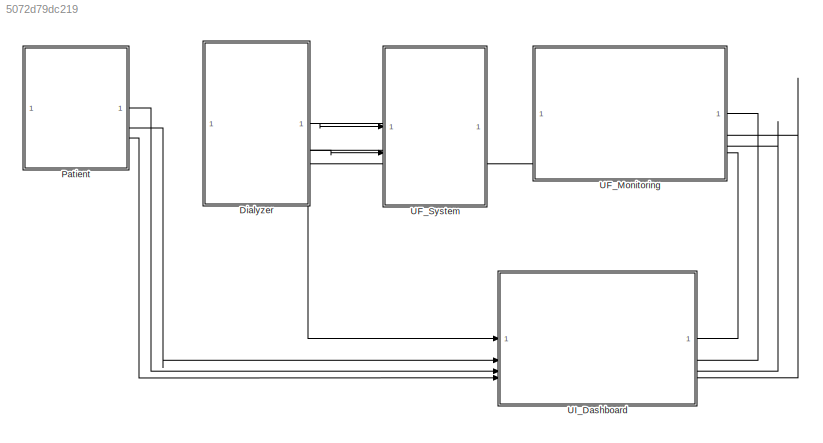
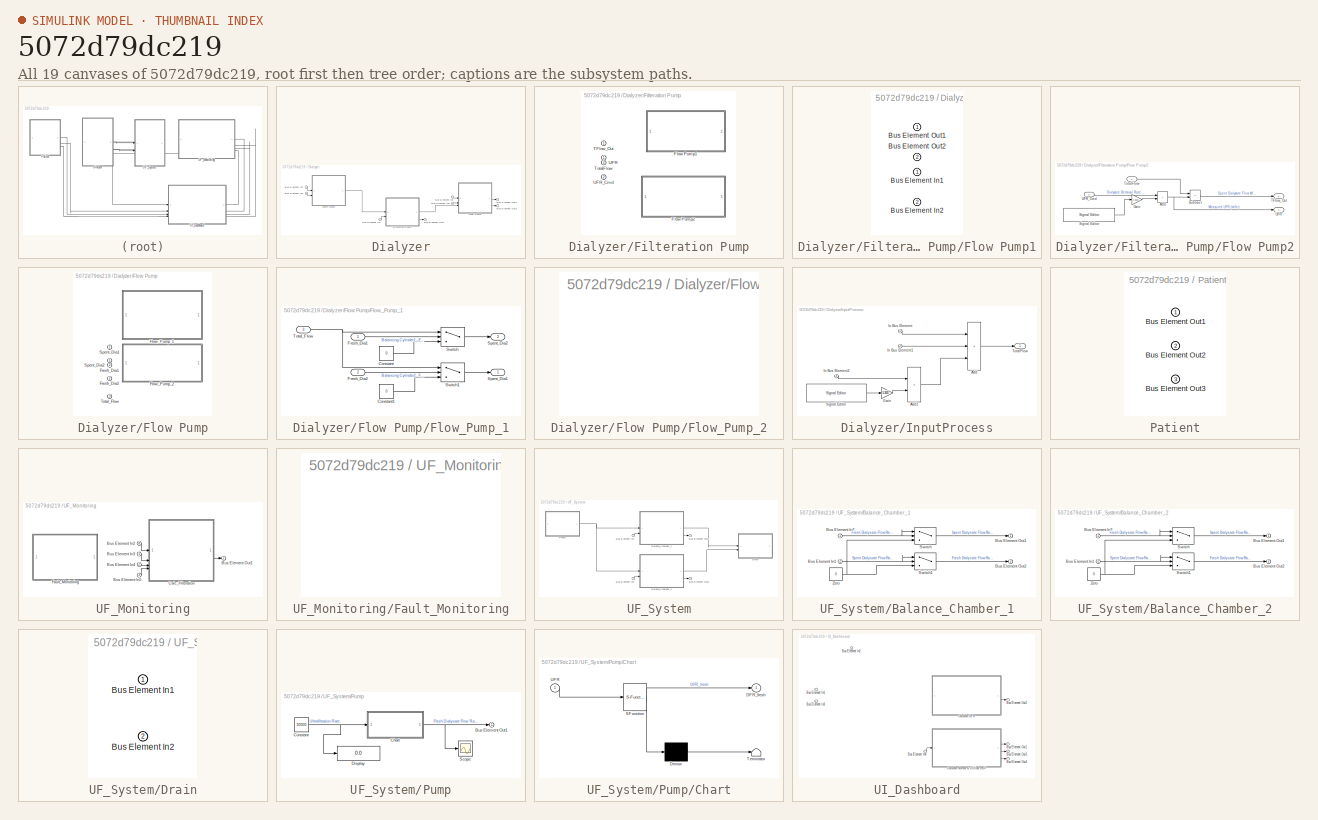
[diagram: thumbnail index - all 19 canvases of the model, root first then tree order]
MODEL slx_5072d79dc219
KIND model
CONFIG AbsTol = auto
CONFIG EnableMultiTasking = off
CONFIG FixedStep = auto
CONFIG MaxStep = auto
CONFIG MinStep = auto
CONFIG RelTol = 1e-3
CONFIG SampleTimeConstraint = Unconstrained
CONFIG SolverName = VariableStepAuto
CONFIG StartTime = 0.0
CONFIG StopTime = 3600*4
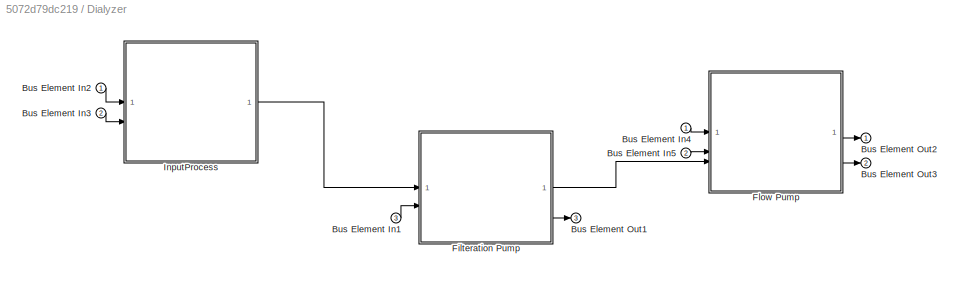
BLOCK [SubSystem] Dialyzer
  PortSchema = {"entries":[{"content":{"headerSize":26,"margin":15,"minimumSpacing":25,"sides":[{"content":{},"type":"ConnectorPlacement.EquallySpacedRectSide","uuid":"646d2c69-fb26-4ce3-9a1c-87f27dc8a7c9"},{"content":{"connectorIds":["In1","In2","Out1","Out2"],"side":"RIGHT"},"type":"ConnectorPlacement.EquallySpacedRectSide","uuid":"7346902f-f0ff-4e8d-8c8a-3cdeffc7661f"},{"content":{"side":"TOP"},"type":"Connec...<+423ch>
BLOCK [Inport] Dialyzer/Bus Element In1
  Port = 3
BLOCK [Inport] Dialyzer/Bus Element In2
BLOCK [Inport] Dialyzer/Bus Element In3
  Port = 2
BLOCK [Inport] Dialyzer/Bus Element In4
BLOCK [Inport] Dialyzer/Bus Element In5
  Port = 2
BLOCK [Outport] Dialyzer/Bus Element Out1
  Port = 3
BLOCK [Outport] Dialyzer/Bus Element Out2
BLOCK [Outport] Dialyzer/Bus Element Out3
  Port = 2
BLOCK [SubSystem] Dialyzer/Filteration Pump
  LabelModeActiveChoice = false
  PortSchema = {"entries":[{"content":{"headerSize":38,"margin":15,"minimumSpacing":25,"sides":[{"content":{"connectorIds":["In1","In2"]},"type":"ConnectorPlacement.EquallySpacedRectSide","uuid":"9dabf490-3af2-45d6-8c60-cb1a1321c83a"},{"content":{"connectorIds":["Out1","Out2"],"side":"RIGHT"},"type":"ConnectorPlacement.EquallySpacedRectSide","uuid":"a9747e4f-9c1f-4b08-97d0-3540262e7855"},{"content":{"side":"TOP"...<+283ch>
  Variant = on
  VariantControlMode = label
BLOCK [SubSystem] Dialyzer/Filteration Pump/Flow Pump1
  PortSchema = {"entries":[{"content":{"headerSize":26,"margin":15,"minimumSpacing":25,"sides":[{"content":{"connectorIds":["In1","In2"]},"type":"ConnectorPlacement.EquallySpacedRectSide","uuid":"d349afe6-09cd-4458-bff5-c9b0512ae125"},{"content":{"connectorIds":["Out1","Out2"],"side":"RIGHT"},"type":"ConnectorPlacement.EquallySpacedRectSide","uuid":"419f3d35-5a25-43f9-91a3-664932055dc6"},{"content":{"side":"TOP"...<+283ch>
  VariantControl = true
BLOCK [Inport] Dialyzer/Filteration Pump/Flow Pump1/Bus Element In1
BLOCK [Inport] Dialyzer/Filteration Pump/Flow Pump1/Bus Element In2
  Port = 2
BLOCK [Outport] Dialyzer/Filteration Pump/Flow Pump1/Bus Element Out1
BLOCK [Outport] Dialyzer/Filteration Pump/Flow Pump1/Bus Element Out2
  Port = 2
BLOCK [SubSystem] Dialyzer/Filteration Pump/Flow Pump2
  PortSchema = {"entries":[{"content":{"headerSize":26,"margin":15,"minimumSpacing":25,"sides":[{"content":{"connectorIds":["In1","In2"]},"type":"ConnectorPlacement.EquallySpacedRectSide","uuid":"d349afe6-09cd-4458-bff5-c9b0512ae125"},{"content":{"connectorIds":["Out1","Out2"],"side":"RIGHT"},"type":"ConnectorPlacement.EquallySpacedRectSide","uuid":"419f3d35-5a25-43f9-91a3-664932055dc6"},{"content":{"side":"TOP"...<+283ch>
  VariantControl = false
BLOCK [Sum] Dialyzer/Filteration Pump/Flow Pump2/Add
  IconShape = rectangular
BLOCK [Gain] Dialyzer/Filteration Pump/Flow Pump2/Gain
  Gain = 1/3600
BLOCK [Reference] Dialyzer/Filteration Pump/Flow Pump2/Signal Editor  REF=SignalEditorBlockLib/Signal Editor
  SourceBlock = SignalEditorBlockLib/Signal Editor
  SourceType = SignalEditor
  UserDataPersistent = on
BLOCK [Sum] Dialyzer/Filteration Pump/Flow Pump2/Subtract
  IconShape = rectangular
  Inputs = +-
BLOCK [Outport] Dialyzer/Filteration Pump/Flow Pump2/TFlow_Out
BLOCK [Inport] Dialyzer/Filteration Pump/Flow Pump2/TotalFlow
BLOCK [Outport] Dialyzer/Filteration Pump/Flow Pump2/UFR
  Port = 2
BLOCK [Inport] Dialyzer/Filteration Pump/Flow Pump2/UFR_Cmd
  Port = 2
BLOCK [Outport] Dialyzer/Filteration Pump/TFlow_Out
BLOCK [Inport] Dialyzer/Filteration Pump/TotalFlow
BLOCK [Outport] Dialyzer/Filteration Pump/UFR
  Port = 2
BLOCK [Inport] Dialyzer/Filteration Pump/UFR_Cmd
  Port = 2
BLOCK [SubSystem] Dialyzer/Flow Pump
  LabelModeActiveChoice = true
  PortSchema = {"entries":[{"content":{"headerSize":38,"margin":15,"minimumSpacing":25,"sides":[{"content":{"connectorIds":["In1","In2","In3"]},"type":"ConnectorPlacement.EquallySpacedRectSide","uuid":"9dabf490-3af2-45d6-8c60-cb1a1321c83a"},{"content":{"connectorIds":["Out1","Out2"],"side":"RIGHT"},"type":"ConnectorPlacement.EquallySpacedRectSide","uuid":"a9747e4f-9c1f-4b08-97d0-3540262e7855"},{"content":{"side"...<+289ch>
  Variant = on
  VariantControlMode = label
BLOCK [SubSystem] Dialyzer/Flow Pump/Flow_Pump_1
  PortSchema = {"entries":[{"content":{"headerSize":26,"margin":15,"minimumSpacing":25,"sides":[{"content":{"connectorIds":["In1","In2","In3"]},"type":"ConnectorPlacement.EquallySpacedRectSide","uuid":"d349afe6-09cd-4458-bff5-c9b0512ae125"},{"content":{"connectorIds":["Out1","Out2"],"side":"RIGHT"},"type":"ConnectorPlacement.EquallySpacedRectSide","uuid":"419f3d35-5a25-43f9-91a3-664932055dc6"},{"content":{"side"...<+289ch>
  VariantControl = true
BLOCK [Constant] Dialyzer/Flow Pump/Flow_Pump_1/Constant
  SampleTime = -1
  Value = 0
BLOCK [Constant] Dialyzer/Flow Pump/Flow_Pump_1/Constant1
  SampleTime = -1
  Value = 0
BLOCK [Inport] Dialyzer/Flow Pump/Flow_Pump_1/Fresh_Dia1
BLOCK [Inport] Dialyzer/Flow Pump/Flow_Pump_1/Fresh_Dia2
  Port = 2
BLOCK [Outport] Dialyzer/Flow Pump/Flow_Pump_1/Spent_Dia1
BLOCK [Outport] Dialyzer/Flow Pump/Flow_Pump_1/Spent_Dia2
  Port = 2
BLOCK [Switch] Dialyzer/Flow Pump/Flow_Pump_1/Switch
  Criteria = u2 > Threshold
  InputSameDT = off
  SaturateOnIntegerOverflow = off
BLOCK [Switch] Dialyzer/Flow Pump/Flow_Pump_1/Switch1
  Criteria = u2 > Threshold
  InputSameDT = off
  SaturateOnIntegerOverflow = off
BLOCK [Inport] Dialyzer/Flow Pump/Flow_Pump_1/Total_Flow
  Port = 3
BLOCK [SubSystem] Dialyzer/Flow Pump/Flow_Pump_2
  PortSchema = {"entries":[{"content":{"headerSize":26,"margin":15,"minimumSpacing":25,"sides":[{"content":{},"type":"ConnectorPlacement.EquallySpacedRectSide","uuid":"d349afe6-09cd-4458-bff5-c9b0512ae125"},{"content":{"side":"RIGHT"},"type":"ConnectorPlacement.EquallySpacedRectSide","uuid":"419f3d35-5a25-43f9-91a3-664932055dc6"},{"content":{"side":"TOP"},"type":"ConnectorPlacement.EquallySpacedRectSide","uuid":...<+224ch>
  VariantControl = false
BLOCK [Inport] Dialyzer/Flow Pump/Fresh_Dia1
BLOCK [Inport] Dialyzer/Flow Pump/Fresh_Dia2
  Port = 2
BLOCK [Outport] Dialyzer/Flow Pump/Spent_Dia1
BLOCK [Outport] Dialyzer/Flow Pump/Spent_Dia2
  Port = 2
BLOCK [Inport] Dialyzer/Flow Pump/Total_Flow
  Port = 3
BLOCK [SubSystem] Dialyzer/InputProcess
  PortSchema = {"entries":[{"content":{"headerSize":26,"margin":15,"minimumSpacing":25,"sides":[{"content":{"connectorIds":["In1","In2","In3"]},"type":"ConnectorPlacement.EquallySpacedRectSide","uuid":"646d2c69-fb26-4ce3-9a1c-87f27dc8a7c9"},{"content":{"connectorIds":["Out1"],"side":"RIGHT"},"type":"ConnectorPlacement.EquallySpacedRectSide","uuid":"7346902f-f0ff-4e8d-8c8a-3cdeffc7661f"},{"content":{"side":"TOP"}...<+282ch>
BLOCK [Sum] Dialyzer/InputProcess/Add
  IconShape = rectangular
  Inputs = +++
BLOCK [Sum] Dialyzer/InputProcess/Add1
  IconShape = rectangular
BLOCK [Gain] Dialyzer/InputProcess/Gain
  Gain = 1/3600
BLOCK [Inport] Dialyzer/InputProcess/In Bus Element
BLOCK [Inport] Dialyzer/InputProcess/In Bus Element1
  Port = 2
BLOCK [Inport] Dialyzer/InputProcess/In Bus Element2
  Port = 3
BLOCK [Reference] Dialyzer/InputProcess/Signal Editor  REF=SignalEditorBlockLib/Signal Editor
  SourceBlock = SignalEditorBlockLib/Signal Editor
  SourceType = SignalEditor
  UserDataPersistent = on
BLOCK [Outport] Dialyzer/InputProcess/TotalFlow
BLOCK [SubSystem] Patient
  PortSchema = {"entries":[{"content":{"headerSize":26,"margin":15,"minimumSpacing":25,"sides":[{"content":{},"type":"ConnectorPlacement.EquallySpacedRectSide","uuid":"c448f8e9-f718-4d55-8ae9-400f94c3ed78"},{"content":{"connectorIds":["Out2","Out1","Out3"],"side":"RIGHT"},"type":"ConnectorPlacement.EquallySpacedRectSide","uuid":"ddea2424-6372-4e6c-88b3-edcc675d5c44"},{"content":{"side":"TOP"},"type":"ConnectorPl...<+388ch>
BLOCK [Outport] Patient/Bus Element Out1
BLOCK [Outport] Patient/Bus Element Out2
  Port = 2
BLOCK [Outport] Patient/Bus Element Out3
  Port = 3
BLOCK [SubSystem] UF_Monitoring
  PortSchema = {"entries":[{"content":{"headerSize":26,"margin":15,"minimumSpacing":25,"sides":[{"content":{},"type":"ConnectorPlacement.EquallySpacedRectSide","uuid":"c448f8e9-f718-4d55-8ae9-400f94c3ed78"},{"content":{"connectorIds":["In2","In3","In1","In4"],"side":"RIGHT"},"type":"ConnectorPlacement.EquallySpacedRectSide","uuid":"ddea2424-6372-4e6c-88b3-edcc675d5c44"},{"content":{"side":"TOP"},"type":"Connecto...<+415ch>
BLOCK [Inport] UF_Monitoring/Bus Element In2
  Port = 4
BLOCK [Inport] UF_Monitoring/Bus Element In3
BLOCK [Inport] UF_Monitoring/Bus Element In4
  Port = 2
BLOCK [Inport] UF_Monitoring/Bus Element In5
  Port = 3
BLOCK [Outport] UF_Monitoring/Bus Element Out1
BLOCK [ModelReference] UF_Monitoring/Calc_Filteration
  ModelNameDialog = UFR_Monitoring_System
  ModelReferenceVersion = 3.74
  PortSchema = {"entries":[{"content":{"headerSize":38,"margin":15,"minimumSpacing":25,"sides":[{"content":{"connectorIds":["In1","In2","In3","In4"]},"type":"ConnectorPlacement.EquallySpacedRectSide","uuid":"c448f8e9-f718-4d55-8ae9-400f94c3ed78"},{"content":{"connectorIds":["Out1"],"side":"RIGHT"},"type":"ConnectorPlacement.EquallySpacedRectSide","uuid":"ddea2424-6372-4e6c-88b3-edcc675d5c44"},{"content":{"side":...<+288ch>
BLOCK [SubSystem] UF_Monitoring/Fault_Monitoring
  PortSchema = {"entries":[{"content":{"headerSize":26,"margin":15,"minimumSpacing":25,"sides":[{"content":{},"type":"ConnectorPlacement.EquallySpacedRectSide","uuid":"a687e012-4840-413d-ae7b-c05f2b55ca05"},{"content":{"side":"RIGHT"},"type":"ConnectorPlacement.EquallySpacedRectSide","uuid":"6a695777-1bf4-4cf6-ae1b-4fd6cbf201ea"},{"content":{"side":"TOP"},"type":"ConnectorPlacement.EquallySpacedRectSide","uuid":...<+224ch>
BLOCK [SubSystem] UF_System
  PortSchema = {"entries":[{"content":{"headerSize":26,"margin":15,"minimumSpacing":25,"sides":[{"content":{"connectorIds":["Out1","Out2","In1","In2"]},"type":"ConnectorPlacement.EquallySpacedRectSide","uuid":"c448f8e9-f718-4d55-8ae9-400f94c3ed78"},{"content":{"side":"RIGHT"},"type":"ConnectorPlacement.EquallySpacedRectSide","uuid":"ddea2424-6372-4e6c-88b3-edcc675d5c44"},{"content":{"side":"TOP"},"type":"Connect...<+392ch>
BLOCK [SubSystem] UF_System/Balance_Chamber_1
  PortSchema = {"entries":[{"content":{"headerSize":26,"margin":15,"minimumSpacing":25,"sides":[{"content":{"connectorIds":["In1","In2"]},"type":"ConnectorPlacement.EquallySpacedRectSide","uuid":"c448f8e9-f718-4d55-8ae9-400f94c3ed78"},{"content":{"connectorIds":["Out1","Out2"],"side":"RIGHT"},"type":"ConnectorPlacement.EquallySpacedRectSide","uuid":"ddea2424-6372-4e6c-88b3-edcc675d5c44"},{"content":{"side":"TOP"...<+283ch>
BLOCK [Inport] UF_System/Balance_Chamber_1/Bus Element In1
  Port = 2
BLOCK [Inport] UF_System/Balance_Chamber_1/Bus Element In2
BLOCK [Outport] UF_System/Balance_Chamber_1/Bus Element Out1
BLOCK [Outport] UF_System/Balance_Chamber_1/Bus Element Out2
  Port = 2
BLOCK [Switch] UF_System/Balance_Chamber_1/Switch
  Criteria = u2 > Threshold
  InputSameDT = off
  SaturateOnIntegerOverflow = off
BLOCK [Switch] UF_System/Balance_Chamber_1/Switch1
  Criteria = u2 > Threshold
  InputSameDT = off
  SaturateOnIntegerOverflow = off
BLOCK [Constant] UF_System/Balance_Chamber_1/Zero
  OutDataTypeStr = Inherit: Inherit via back propagation
  Value = 0
BLOCK [SubSystem] UF_System/Balance_Chamber_2
  PortSchema = {"entries":[{"content":{"headerSize":26,"margin":15,"minimumSpacing":25,"sides":[{"content":{"connectorIds":["In1","In2"]},"type":"ConnectorPlacement.EquallySpacedRectSide","uuid":"c448f8e9-f718-4d55-8ae9-400f94c3ed78"},{"content":{"connectorIds":["Out1","Out2"],"side":"RIGHT"},"type":"ConnectorPlacement.EquallySpacedRectSide","uuid":"ddea2424-6372-4e6c-88b3-edcc675d5c44"},{"content":{"side":"TOP"...<+283ch>
BLOCK [Inport] UF_System/Balance_Chamber_2/Bus Element In1
  Port = 2
BLOCK [Inport] UF_System/Balance_Chamber_2/Bus Element In2
BLOCK [Outport] UF_System/Balance_Chamber_2/Bus Element Out1
BLOCK [Outport] UF_System/Balance_Chamber_2/Bus Element Out2
  Port = 2
BLOCK [Switch] UF_System/Balance_Chamber_2/Switch
  Criteria = u2 > Threshold
  InputSameDT = off
  SaturateOnIntegerOverflow = off
BLOCK [Switch] UF_System/Balance_Chamber_2/Switch1
  Criteria = u2 > Threshold
  InputSameDT = off
  SaturateOnIntegerOverflow = off
BLOCK [Constant] UF_System/Balance_Chamber_2/Zero
  OutDataTypeStr = Inherit: Inherit via back propagation
  Value = 0
BLOCK [Inport] UF_System/Bus Element In3
  Port = 2
BLOCK [Inport] UF_System/Bus Element In4
BLOCK [Outport] UF_System/Bus Element Out1
BLOCK [Outport] UF_System/Bus Element Out2
  Port = 2
BLOCK [SubSystem] UF_System/Drain
  PortSchema = {"entries":[{"content":{"headerSize":26,"margin":15,"minimumSpacing":25,"sides":[{"content":{"connectorIds":["In1","In2"]},"type":"ConnectorPlacement.EquallySpacedRectSide","uuid":"c448f8e9-f718-4d55-8ae9-400f94c3ed78"},{"content":{"side":"RIGHT"},"type":"ConnectorPlacement.EquallySpacedRectSide","uuid":"ddea2424-6372-4e6c-88b3-edcc675d5c44"},{"content":{"side":"TOP"},"type":"ConnectorPlacement.Eq...<+252ch>
BLOCK [Inport] UF_System/Drain/Bus Element In1
BLOCK [Inport] UF_System/Drain/Bus Element In2
  Port = 2
BLOCK [SubSystem] UF_System/Pump
  PortSchema = {"entries":[{"content":{"headerSize":26,"margin":15,"minimumSpacing":25,"sides":[{"content":{},"type":"ConnectorPlacement.EquallySpacedRectSide","uuid":"c448f8e9-f718-4d55-8ae9-400f94c3ed78"},{"content":{"connectorIds":["Out1"],"side":"RIGHT"},"type":"ConnectorPlacement.EquallySpacedRectSide","uuid":"ddea2424-6372-4e6c-88b3-edcc675d5c44"},{"content":{"side":"TOP"},"type":"ConnectorPlacement.Equall...<+248ch>
BLOCK [Outport] UF_System/Pump/Bus Element Out1
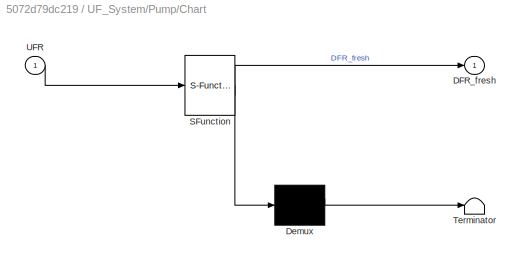
BLOCK [SubSystem] UF_System/Pump/Chart
  ErrorFcn = Stateflow.Translate.translate
  PermitHierarchicalResolution = ExplicitOnly
  SFBlockType = Chart
  TreatAsAtomicUnit = on
BLOCK [Demux] UF_System/Pump/Chart/ Demux 
  Outputs = 1
BLOCK [S-Function] UF_System/Pump/Chart/ SFunction 
  EnableBusSupport = on
  FunctionName = sf_sfun
  PortCounts = [1 2]
  SFcnIsStateOwnerBlock = off
  SFunctionDeploymentMode = off
  Tag = Stateflow S-Function 5
BLOCK [Terminator] UF_System/Pump/Chart/ Terminator 
BLOCK [Outport] UF_System/Pump/Chart/DFR_fresh
BLOCK [Inport] UF_System/Pump/Chart/UFR
BLOCK [Constant] UF_System/Pump/Constant
  Value = 30000
BLOCK [Display] UF_System/Pump/Display
  Decimation = 1
BLOCK [Scope] UF_System/Pump/Scope
  Floating = off
  NumInputPorts = 1
  ScopeSpecificationString = Simulink.scopes.TimeScopeBlockCfg('CurrentConfiguration', extmgr.ConfigurationSet(extmgr.Configuration('Core','General UI',true),extmgr.Configuration('Core','Source UI',true),extmgr.Configuration('Sources','WiredSimulink',true),extmgr.Configuration('Visuals','Time Domain',true,'SerializedDisplays',{struct('MinYLimReal','-3750.00000','MaxYLimReal','33750.00000','YLabelReal','','MinYLimMag','  0.000...<+1462ch>
BLOCK [SubSystem] UI_Dashboard
  PortSchema = {"entries":[{"content":{"headerSize":26,"margin":15,"minimumSpacing":25,"sides":[{"content":{"connectorIds":["In1","In2","In3","In4"]},"type":"ConnectorPlacement.EquallySpacedRectSide","uuid":"c448f8e9-f718-4d55-8ae9-400f94c3ed78"},{"content":{"connectorIds":["Out1","Out2","Out3","Out4"],"side":"RIGHT"},"type":"ConnectorPlacement.EquallySpacedRectSide","uuid":"ddea2424-6372-4e6c-88b3-edcc675d5c44"...<+309ch>
BLOCK [Inport] UI_Dashboard/Bus Element In1
  Port = 3
BLOCK [Inport] UI_Dashboard/Bus Element In2
  Port = 2
BLOCK [Inport] UI_Dashboard/Bus Element In3
  Port = 4
BLOCK [Inport] UI_Dashboard/Bus Element In4
BLOCK [Outport] UI_Dashboard/Bus Element Out1
  Port = 2
BLOCK [Outport] UI_Dashboard/Bus Element Out2
BLOCK [Outport] UI_Dashboard/Bus Element Out3
  Port = 3
BLOCK [Outport] UI_Dashboard/Bus Element Out4
  Port = 4
BLOCK [SubSystem] UI_Dashboard/Calculate Normal & Critical RBV
  PortSchema = {"entries":[{"content":{"headerSize":26,"margin":15,"minimumSpacing":25,"sides":[{"content":{"connectorIds":["In1"]},"type":"ConnectorPlacement.EquallySpacedRectSide","uuid":"646d2c69-fb26-4ce3-9a1c-87f27dc8a7c9"},{"content":{"connectorIds":["Out1","Out2","Out3"],"side":"RIGHT"},"type":"ConnectorPlacement.EquallySpacedRectSide","uuid":"7346902f-f0ff-4e8d-8c8a-3cdeffc7661f"},{"content":{"side":"TOP...<+284ch>
  ReferencedSubsystem = CalculateNormalCriticalRBV
BLOCK [SubSystem] UI_Dashboard/Calculate UFR
  PortSchema = {"entries":[{"content":{"headerSize":26,"margin":15,"minimumSpacing":25,"sides":[{"content":{},"type":"ConnectorPlacement.EquallySpacedRectSide","uuid":"646d2c69-fb26-4ce3-9a1c-87f27dc8a7c9"},{"content":{"connectorIds":["Out1"],"side":"RIGHT"},"type":"ConnectorPlacement.EquallySpacedRectSide","uuid":"7346902f-f0ff-4e8d-8c8a-3cdeffc7661f"},{"content":{"side":"TOP"},"type":"ConnectorPlacement.Equall...<+248ch>
  ReferencedSubsystem = Calculate_Prescribed_UFR
  dtime = 4
  postdw = 70.6
  predw = 73.2
LINE Dialyzer/Bus Element In1:1 -> Dialyzer/Filteration Pump:2
LINE Dialyzer/Bus Element In2:1 -> Dialyzer/InputProcess:1
LINE Dialyzer/Bus Element In3:1 -> Dialyzer/InputProcess:2
LINE Dialyzer/Bus Element In4:1 -> Dialyzer/Flow Pump:1
LINE Dialyzer/Bus Element In5:1 -> Dialyzer/Flow Pump:2
NET Dialyzer/Filteration Pump/Flow Pump2/Add:1 -> Dialyzer/Filteration Pump/Flow Pump2/Subtract:2, Dialyzer/Filteration Pump/Flow Pump2/UFR:1
LINE Dialyzer/Filteration Pump/Flow Pump2/Gain:1 -> Dialyzer/Filteration Pump/Flow Pump2/Add:2
LINE Dialyzer/Filteration Pump/Flow Pump2/Signal Editor:1 -> Dialyzer/Filteration Pump/Flow Pump2/Gain:1
LINE Dialyzer/Filteration Pump/Flow Pump2/Subtract:1 -> Dialyzer/Filteration Pump/Flow Pump2/TFlow_Out:1
LINE Dialyzer/Filteration Pump/Flow Pump2/TotalFlow:1 -> Dialyzer/Filteration Pump/Flow Pump2/Subtract:1
LINE Dialyzer/Filteration Pump/Flow Pump2/UFR_Cmd:1 -> Dialyzer/Filteration Pump/Flow Pump2/Add:1
LINE Dialyzer/Filteration Pump:1 -> Dialyzer/Flow Pump:3
LINE Dialyzer/Filteration Pump:2 -> Dialyzer/Bus Element Out1:1
LINE Dialyzer/Flow Pump/Flow_Pump_1/Constant1:1 -> Dialyzer/Flow Pump/Flow_Pump_1/Switch1:3
LINE Dialyzer/Flow Pump/Flow_Pump_1/Constant:1 -> Dialyzer/Flow Pump/Flow_Pump_1/Switch:3
LINE Dialyzer/Flow Pump/Flow_Pump_1/Fresh_Dia1:1 -> Dialyzer/Flow Pump/Flow_Pump_1/Switch:2
LINE Dialyzer/Flow Pump/Flow_Pump_1/Fresh_Dia2:1 -> Dialyzer/Flow Pump/Flow_Pump_1/Switch1:2
LINE Dialyzer/Flow Pump/Flow_Pump_1/Switch1:1 -> Dialyzer/Flow Pump/Flow_Pump_1/Spent_Dia1:1
LINE Dialyzer/Flow Pump/Flow_Pump_1/Switch:1 -> Dialyzer/Flow Pump/Flow_Pump_1/Spent_Dia2:1
NET Dialyzer/Flow Pump/Flow_Pump_1/Total_Flow:1 -> Dialyzer/Flow Pump/Flow_Pump_1/Switch1:1, Dialyzer/Flow Pump/Flow_Pump_1/Switch:1
LINE Dialyzer/Flow Pump:1 -> Dialyzer/Bus Element Out2:1
LINE Dialyzer/Flow Pump:2 -> Dialyzer/Bus Element Out3:1
LINE Dialyzer/InputProcess/Add1:1 -> Dialyzer/InputProcess/Add:3
LINE Dialyzer/InputProcess/Add:1 -> Dialyzer/InputProcess/TotalFlow:1
LINE Dialyzer/InputProcess/Gain:1 -> Dialyzer/InputProcess/Add1:2
LINE Dialyzer/InputProcess/In Bus Element1:1 -> Dialyzer/InputProcess/Add:2
LINE Dialyzer/InputProcess/In Bus Element2:1 -> Dialyzer/InputProcess/Add1:1
LINE Dialyzer/InputProcess/In Bus Element:1 -> Dialyzer/InputProcess/Add:1
LINE Dialyzer/InputProcess/Signal Editor:1 -> Dialyzer/InputProcess/Gain:1
LINE Dialyzer/InputProcess:1 -> Dialyzer/Filteration Pump:1
LINE Dialyzer:1 -> UF_System:1
LINE Dialyzer:2 -> UF_System:2
LINE Dialyzer:3 -> UI_Dashboard:1
LINE Patient:1 -> UI_Dashboard:3
LINE Patient:2 -> UI_Dashboard:2
LINE Patient:3 -> UI_Dashboard:4
LINE UF_Monitoring/Bus Element In2:1 -> UF_Monitoring/Calc_Filteration:1
LINE UF_Monitoring/Bus Element In3:1 -> UF_Monitoring/Calc_Filteration:2
LINE UF_Monitoring/Bus Element In4:1 -> UF_Monitoring/Calc_Filteration:3
LINE UF_Monitoring/Bus Element In5:1 -> UF_Monitoring/Calc_Filteration:4
LINE UF_Monitoring/Calc_Filteration:1 -> UF_Monitoring/Bus Element Out1:1
LINE UF_Monitoring:1 -> Dialyzer:3
NET UF_System/Balance_Chamber_1/Bus Element In1:1 -> UF_System/Balance_Chamber_1/Switch1:1, UF_System/Balance_Chamber_1/Switch1:2
NET UF_System/Balance_Chamber_1/Bus Element In2:1 -> UF_System/Balance_Chamber_1/Switch:1, UF_System/Balance_Chamber_1/Switch:2
LINE UF_System/Balance_Chamber_1/Switch1:1 -> UF_System/Balance_Chamber_1/Bus Element Out2:1
LINE UF_System/Balance_Chamber_1/Switch:1 -> UF_System/Balance_Chamber_1/Bus Element Out1:1
NET UF_System/Balance_Chamber_1/Zero:1 -> UF_System/Balance_Chamber_1/Switch1:3, UF_System/Balance_Chamber_1/Switch:3
LINE UF_System/Balance_Chamber_1:1 -> UF_System/Drain:1
LINE UF_System/Balance_Chamber_1:2 -> UF_System/Bus Element Out1:1
NET UF_System/Balance_Chamber_2/Bus Element In1:1 -> UF_System/Balance_Chamber_2/Switch1:1, UF_System/Balance_Chamber_2/Switch1:2
NET UF_System/Balance_Chamber_2/Bus Element In2:1 -> UF_System/Balance_Chamber_2/Switch:1, UF_System/Balance_Chamber_2/Switch:2
LINE UF_System/Balance_Chamber_2/Switch1:1 -> UF_System/Balance_Chamber_2/Bus Element Out2:1
LINE UF_System/Balance_Chamber_2/Switch:1 -> UF_System/Balance_Chamber_2/Bus Element Out1:1
NET UF_System/Balance_Chamber_2/Zero:1 -> UF_System/Balance_Chamber_2/Switch1:3, UF_System/Balance_Chamber_2/Switch:3
LINE UF_System/Balance_Chamber_2:1 -> UF_System/Drain:2
LINE UF_System/Balance_Chamber_2:2 -> UF_System/Bus Element Out2:1
LINE UF_System/Bus Element In3:1 -> UF_System/Balance_Chamber_2:2
LINE UF_System/Bus Element In4:1 -> UF_System/Balance_Chamber_1:2
NET UF_System/Pump/Chart:1 -> UF_System/Pump/Bus Element Out1:1, UF_System/Pump/Scope:1
NET UF_System/Pump/Constant:1 -> UF_System/Pump/Chart:1, UF_System/Pump/Display:1
NET UF_System/Pump:1 -> UF_System/Balance_Chamber_1:1, UF_System/Balance_Chamber_2:1
LINE UF_System:1 -> Dialyzer:1
LINE UF_System:2 -> Dialyzer:2
LINE UI_Dashboard/Bus Element In4:1 -> UI_Dashboard/Calculate Normal & Critical RBV:1
LINE UI_Dashboard/Calculate Normal & Critical RBV:1 -> UI_Dashboard/Bus Element Out1:1
LINE UI_Dashboard/Calculate Normal & Critical RBV:2 -> UI_Dashboard/Bus Element Out3:1
LINE UI_Dashboard/Calculate Normal & Critical RBV:3 -> UI_Dashboard/Bus Element Out4:1
LINE UI_Dashboard/Calculate UFR:1 -> UI_Dashboard/Bus Element Out2:1
LINE UI_Dashboard:1 -> UF_Monitoring:4
LINE UI_Dashboard:2 -> UF_Monitoring:1
LINE UI_Dashboard:3 -> UF_Monitoring:3
LINE UI_Dashboard:4 -> UF_Monitoring:2
note: NET lines group one-source signal fan-out (src -> all destinations, sorted); 1:1 wires keep LINE
CHART UF_System/Pump/Chart states=2 transitions=3
  STATE_LABEL 'FillCylinder2\nentry: DFR_fresh = [UFR, 0];\nduring: DFR_fresh = [UFR, 0];'
  STATE_LABEL 'FillCylinder1\nentry: DFR_fresh = [0, UFR];\nduring: DFR_fresh = [0, UFR];\n'
CHART  states=0 transitions=0
